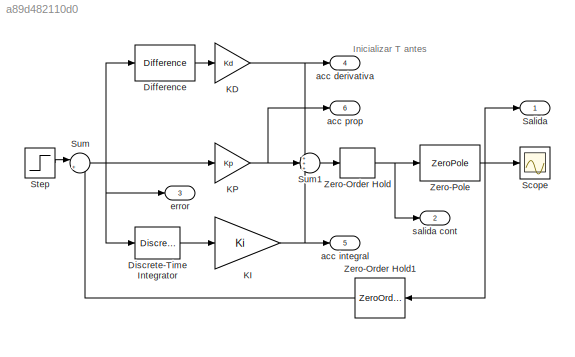
MODEL slx_a89d482110d0
KIND model
CONFIG AbsTol = auto
CONFIG FixedStep = auto
CONFIG MaxStep = 1e-5
CONFIG MinStep = auto
CONFIG RelTol = 1e-3
CONFIG SampleTimeConstraint = Unconstrained
CONFIG Solver = ode45
CONFIG SolverMode = Auto
CONFIG SolverName = ode45
CONFIG StartTime = 0.0
CONFIG StopTime = 7
BLOCK [Reference] Difference  REF=simulink/Discrete/Difference
  Ports = [1, 1]
  SourceBlock = simulink/Discrete/Difference
  SourceType = Difference
BLOCK [DiscreteIntegrator] Discrete-Time Integrator
  ICPrevOutput = DiscIntNeverNeededParam
  ICPrevScaledInput = DiscIntNeverNeededParam
  IntegratorMethod = Accumulation: Forward Euler
  Ports = [1, 1]
  SampleTime = -1
BLOCK [Gain] KD
  Gain = Kd
  OutDataTypeStr = Inherit: Inherit via internal rule
  ParamDataTypeStr = Inherit: Inherit via internal rule
  SaturateOnIntegerOverflow = off
BLOCK [Gain] KI
  Gain = Ki
  OutDataTypeStr = Inherit: Inherit via internal rule
  ParamDataTypeStr = Inherit: Inherit via internal rule
  SaturateOnIntegerOverflow = off
BLOCK [Gain] KP
  Gain = Kp
  OutDataTypeStr = Inherit: Inherit via internal rule
  ParamDataTypeStr = Inherit: Inherit via internal rule
  SaturateOnIntegerOverflow = off
BLOCK [Outport] Salida
  IconDisplay = Port number
BLOCK [Scope] Scope
  Ports = [1]
  ScopeSpecificationString = Simulink.scopes.TimeScopeBlockCfg('CurrentConfiguration', extmgr.ConfigurationSet(extmgr.Configuration('Core','General UI',true),extmgr.Configuration('Core','Source UI',true),extmgr.Configuration('Sources','WiredSimulink',true,'DataLoggingSaveFormat','StructureWithTime','DataLoggingDecimation','1','DataLoggingDecimateData',true),extmgr.Configuration('Visuals','Time Domain',true,'SerializedDisplays...<+1992ch>
BLOCK [Step] Step
  SampleTime = T
  Time = 0
BLOCK [Sum] Sum
  IconShape = round
  InputSameDT = off
  Inputs = |+-
  OutDataTypeStr = Inherit: Inherit via internal rule
  Ports = [2, 1]
  SaturateOnIntegerOverflow = off
BLOCK [Sum] Sum1
  IconShape = round
  InputSameDT = off
  Inputs = +++
  OutDataTypeStr = Inherit: Inherit via internal rule
  Ports = [3, 1]
  SaturateOnIntegerOverflow = off
BLOCK [ZeroOrderHold] Zero-Order Hold
  SampleTime = T
BLOCK [ZeroOrderHold] Zero-Order Hold1
  SampleTime = T
BLOCK [ZeroPole] Zero-Pole
  Gain = [K]
  Poles = [p1 p2]
  Zeros = [c1]
BLOCK [Outport] acc derivativa
  IconDisplay = Port number
  Port = 4
BLOCK [Outport] acc integral
  IconDisplay = Port number
  Port = 5
BLOCK [Outport] acc prop
  IconDisplay = Port number
  Port = 6
BLOCK [Outport] error
  IconDisplay = Port number
  Port = 3
BLOCK [Outport] salida cont
  IconDisplay = Port number
  Port = 2
ANNOTATION (root): Inicializar T antes
LINE Difference:1 -> KD:1
LINE Discrete-Time Integrator:1 -> KI:1
NET KD:1 -> Sum1:1, acc derivativa:1
NET KI:1 -> Sum1:3, acc integral:1
NET KP:1 -> Sum1:2, acc prop:1
LINE Step:1 -> Sum:1
LINE Sum1:1 -> Zero-Order Hold:1
NET Sum:1 -> Difference:1, Discrete-Time Integrator:1, KP:1, error:1
LINE Zero-Order Hold1:1 -> Sum:2
NET Zero-Order Hold:1 -> Zero-Pole:1, salida cont:1
NET Zero-Pole:1 -> Salida:1, Scope:1, Zero-Order Hold1:1
note: NET lines group one-source signal fan-out (src -> all destinations, sorted); 1:1 wires keep LINE
